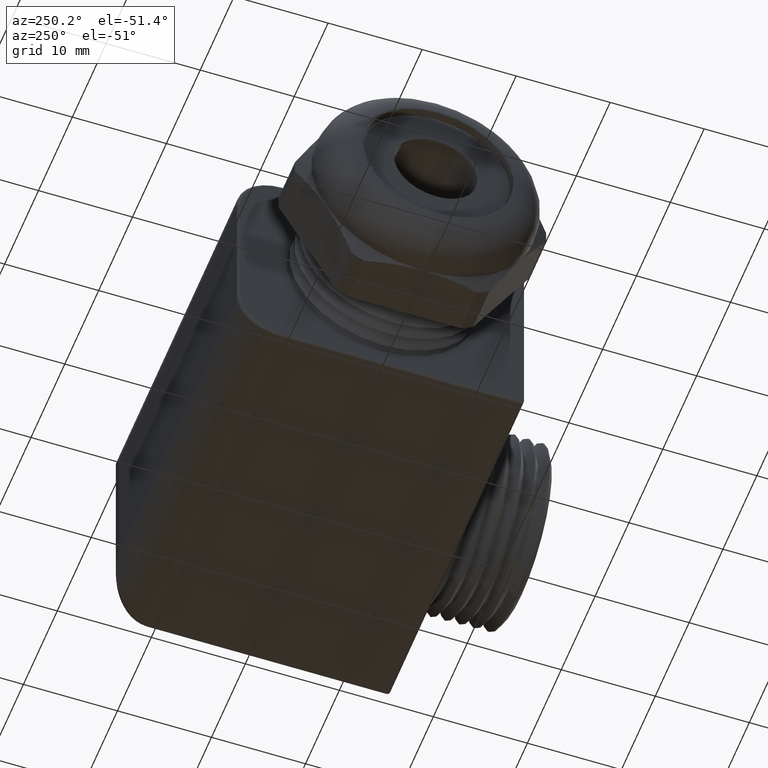
[diagram: clean part render]
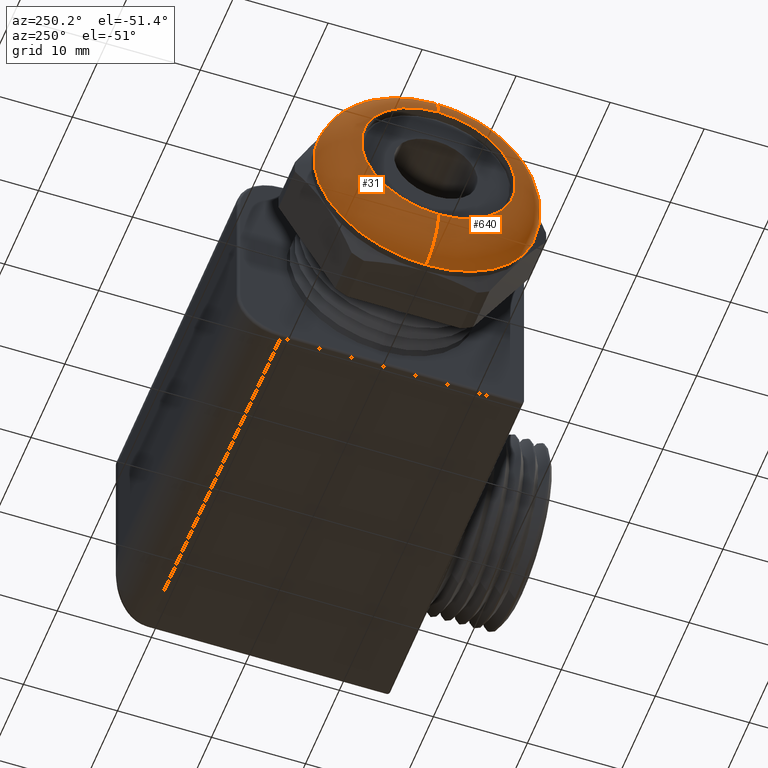
[diagram: same view with one multi-face feature highlighted, each face labeled with its STEP entity id]
A machine part, auxiliary view. The highlighted faces form ONE feature: a constant-radius fillet chain: 2 tangent blend faces with common blend radius 3.7298 mm. The faces share edges in the B-rep.
Their STEP definitions:
[1] entity #31 (Torus):
#1 = ORIENTED_EDGE ( 'NONE', *, *, #162, .F. ) ;
#21 = ORIENTED_EDGE ( 'NONE', *, *, #22, .T. ) ;
#22 = EDGE_CURVE ( 'NONE', #316, #23, #1455, .T. ) ;
#23 = VERTEX_POINT ( 'NONE', #1450 ) ;
#24 = VERTEX_POINT ( 'NONE', #1449 ) ;
#31 = ADVANCED_FACE ( 'NONE', ( #1659 ), #1656, .T. ) ;
#32 = ORIENTED_EDGE ( 'NONE', *, *, #315, .F. ) ;
#162 = EDGE_CURVE ( 'NONE', #317, #24, #1853, .T. ) ;
#302 = EDGE_LOOP ( 'NONE', ( #32, #21, #323, #1 ) ) ;
#315 = EDGE_CURVE ( 'NONE', #316, #317, #1974, .T. ) ;
#316 = VERTEX_POINT ( 'NONE', #1961 ) ;
#317 = VERTEX_POINT ( 'NONE', #1960 ) ;
#323 = ORIENTED_EDGE ( 'NONE', *, *, #324, .F. ) ;
#324 = EDGE_CURVE ( 'NONE', #24, #23, #2142, .T. ) ;
#1449 = CARTESIAN_POINT ( 'NONE',  ( -0.5251578947368421600, 5.755839955992557200E-017, -0.4699999999999997500 ) ) ;
#1450 = CARTESIAN_POINT ( 'NONE',  ( -0.5251578947368421600, 0.0000000000000000000, 0.4699999999999997500 ) ) ;
#1451 = DIRECTION ( 'NONE',  ( 0.0000000000000000000, 1.224646799147353200E-016, 1.000000000000000000 ) ) ;
#1452 = DIRECTION ( 'NONE',  ( 0.0000000000000000000, 1.000000000000000000, -1.224646799147353200E-016 ) ) ;
#1453 = CARTESIAN_POINT ( 'NONE',  ( -0.5251578947368421600, 3.957542814086706600E-017, 0.3231578947368418700 ) ) ;
#1454 = AXIS2_PLACEMENT_3D ( 'NONE', #1453, #1452, #1451 ) ;
#1455 = CIRCLE ( 'NONE', #1454, 0.1468421052631579100 ) ;
#1562 = DIRECTION ( 'NONE',  ( 0.0000000000000000000, 0.0000000000000000000, -1.000000000000000000 ) ) ;
#1563 = DIRECTION ( 'NONE',  ( 1.000000000000000000, 0.0000000000000000000, 0.0000000000000000000 ) ) ;
#1656 = TOROIDAL_SURFACE ( 'NONE', #1658, 0.3231578947368418700, 0.1468421052631579100 ) ;
#1658 = AXIS2_PLACEMENT_3D ( 'NONE', #1664, #1563, #1562 ) ;
#1659 = FACE_OUTER_BOUND ( 'NONE', #302, .T. ) ;
#1664 = CARTESIAN_POINT ( 'NONE',  ( -0.5251578947368421600, 0.0000000000000000000, 0.0000000000000000000 ) ) ;
#1845 = DIRECTION ( 'NONE',  ( 0.0000000000000000000, 0.0000000000000000000, -1.000000000000000000 ) ) ;
#1846 = DIRECTION ( 'NONE',  ( 0.0000000000000000000, -1.000000000000000000, 0.0000000000000000000 ) ) ;
#1847 = CARTESIAN_POINT ( 'NONE',  ( -0.5251578947368421600, 0.0000000000000000000, -0.3231578947368418700 ) ) ;
#1848 = AXIS2_PLACEMENT_3D ( 'NONE', #1847, #1846, #1845 ) ;
#1853 = CIRCLE ( 'NONE', #1848, 0.1468421052631579100 ) ;
#1960 = CARTESIAN_POINT ( 'NONE',  ( -0.6720000000000001500, 0.0000000000000000000, -0.3231578947368418700 ) ) ;
#1961 = CARTESIAN_POINT ( 'NONE',  ( -0.6720000000000001500, 4.856691385039631900E-017, 0.3231578947368418700 ) ) ;
#1962 = DIRECTION ( 'NONE',  ( 0.0000000000000000000, 0.0000000000000000000, -1.000000000000000000 ) ) ;
#1963 = DIRECTION ( 'NONE',  ( -1.000000000000000000, 0.0000000000000000000, 0.0000000000000000000 ) ) ;
#1964 = CARTESIAN_POINT ( 'NONE',  ( -0.6720000000000001500, 0.0000000000000000000, 0.0000000000000000000 ) ) ;
#1965 = AXIS2_PLACEMENT_3D ( 'NONE', #1964, #1963, #1962 ) ;
#1974 = CIRCLE ( 'NONE', #1965, 0.3231578947368418700 ) ;
#2142 = CIRCLE ( 'NONE', #2147, 0.4699999999999997500 ) ;
#2144 = DIRECTION ( 'NONE',  ( 0.0000000000000000000, 0.0000000000000000000, -1.000000000000000000 ) ) ;
#2145 = DIRECTION ( 'NONE',  ( 1.000000000000000000, 0.0000000000000000000, 0.0000000000000000000 ) ) ;
#2146 = CARTESIAN_POINT ( 'NONE',  ( -0.5251578947368421600, 0.0000000000000000000, 0.0000000000000000000 ) ) ;
#2147 = AXIS2_PLACEMENT_3D ( 'NONE', #2146, #2145, #2144 ) ;
[2] entity #640 (Torus):
#22 = EDGE_CURVE ( 'NONE', #316, #23, #1455, .T. ) ;
#23 = VERTEX_POINT ( 'NONE', #1450 ) ;
#24 = VERTEX_POINT ( 'NONE', #1449 ) ;
#162 = EDGE_CURVE ( 'NONE', #317, #24, #1853, .T. ) ;
#316 = VERTEX_POINT ( 'NONE', #1961 ) ;
#317 = VERTEX_POINT ( 'NONE', #1960 ) ;
#633 = EDGE_CURVE ( 'NONE', #317, #316, #2522, .T. ) ;
#640 = ADVANCED_FACE ( 'NONE', ( #2523 ), #2515, .T. ) ;
#641 = EDGE_LOOP ( 'NONE', ( #642, #643, #644, #645 ) ) ;
#642 = ORIENTED_EDGE ( 'NONE', *, *, #22, .F. ) ;
#643 = ORIENTED_EDGE ( 'NONE', *, *, #633, .F. ) ;
#644 = ORIENTED_EDGE ( 'NONE', *, *, #162, .T. ) ;
#645 = ORIENTED_EDGE ( 'NONE', *, *, #695, .F. ) ;
#695 = EDGE_CURVE ( 'NONE', #23, #24, #2875, .T. ) ;
#1449 = CARTESIAN_POINT ( 'NONE',  ( -0.5251578947368421600, 5.755839955992557200E-017, -0.4699999999999997500 ) ) ;
#1450 = CARTESIAN_POINT ( 'NONE',  ( -0.5251578947368421600, 0.0000000000000000000, 0.4699999999999997500 ) ) ;
#1451 = DIRECTION ( 'NONE',  ( 0.0000000000000000000, 1.224646799147353200E-016, 1.000000000000000000 ) ) ;
#1452 = DIRECTION ( 'NONE',  ( 0.0000000000000000000, 1.000000000000000000, -1.224646799147353200E-016 ) ) ;
#1453 = CARTESIAN_POINT ( 'NONE',  ( -0.5251578947368421600, 3.957542814086706600E-017, 0.3231578947368418700 ) ) ;
#1454 = AXIS2_PLACEMENT_3D ( 'NONE', #1453, #1452, #1451 ) ;
#1455 = CIRCLE ( 'NONE', #1454, 0.1468421052631579100 ) ;
#1845 = DIRECTION ( 'NONE',  ( 0.0000000000000000000, 0.0000000000000000000, -1.000000000000000000 ) ) ;
#1846 = DIRECTION ( 'NONE',  ( 0.0000000000000000000, -1.000000000000000000, 0.0000000000000000000 ) ) ;
#1847 = CARTESIAN_POINT ( 'NONE',  ( -0.5251578947368421600, 0.0000000000000000000, -0.3231578947368418700 ) ) ;
#1848 = AXIS2_PLACEMENT_3D ( 'NONE', #1847, #1846, #1845 ) ;
#1853 = CIRCLE ( 'NONE', #1848, 0.1468421052631579100 ) ;
#1960 = CARTESIAN_POINT ( 'NONE',  ( -0.6720000000000001500, 0.0000000000000000000, -0.3231578947368418700 ) ) ;
#1961 = CARTESIAN_POINT ( 'NONE',  ( -0.6720000000000001500, 4.856691385039631900E-017, 0.3231578947368418700 ) ) ;
#2370 = CARTESIAN_POINT ( 'NONE',  ( -0.6720000000000001500, 0.0000000000000000000, 0.0000000000000000000 ) ) ;
#2513 = DIRECTION ( 'NONE',  ( 1.000000000000000000, 0.0000000000000000000, 0.0000000000000000000 ) ) ;
#2514 = AXIS2_PLACEMENT_3D ( 'NONE', #2518, #2513, #2581 ) ;
#2515 = TOROIDAL_SURFACE ( 'NONE', #2514, 0.3231578947368418700, 0.1468421052631579100 ) ;
#2518 = CARTESIAN_POINT ( 'NONE',  ( -0.5251578947368421600, 0.0000000000000000000, 0.0000000000000000000 ) ) ;
#2519 = DIRECTION ( 'NONE',  ( 0.0000000000000000000, 0.0000000000000000000, -1.000000000000000000 ) ) ;
#2520 = DIRECTION ( 'NONE',  ( -1.000000000000000000, 0.0000000000000000000, 0.0000000000000000000 ) ) ;
#2521 = AXIS2_PLACEMENT_3D ( 'NONE', #2370, #2520, #2519 ) ;
#2522 = CIRCLE ( 'NONE', #2521, 0.3231578947368418700 ) ;
#2523 = FACE_OUTER_BOUND ( 'NONE', #641, .T. ) ;
#2581 = DIRECTION ( 'NONE',  ( 0.0000000000000000000, 0.0000000000000000000, -1.000000000000000000 ) ) ;
#2871 = DIRECTION ( 'NONE',  ( 0.0000000000000000000, 0.0000000000000000000, -1.000000000000000000 ) ) ;
#2872 = DIRECTION ( 'NONE',  ( 1.000000000000000000, 0.0000000000000000000, 0.0000000000000000000 ) ) ;
#2873 = CARTESIAN_POINT ( 'NONE',  ( -0.5251578947368421600, 0.0000000000000000000, 0.0000000000000000000 ) ) ;
#2874 = AXIS2_PLACEMENT_3D ( 'NONE', #2873, #2872, #2871 ) ;
#2875 = CIRCLE ( 'NONE', #2874, 0.4699999999999997500 ) ;